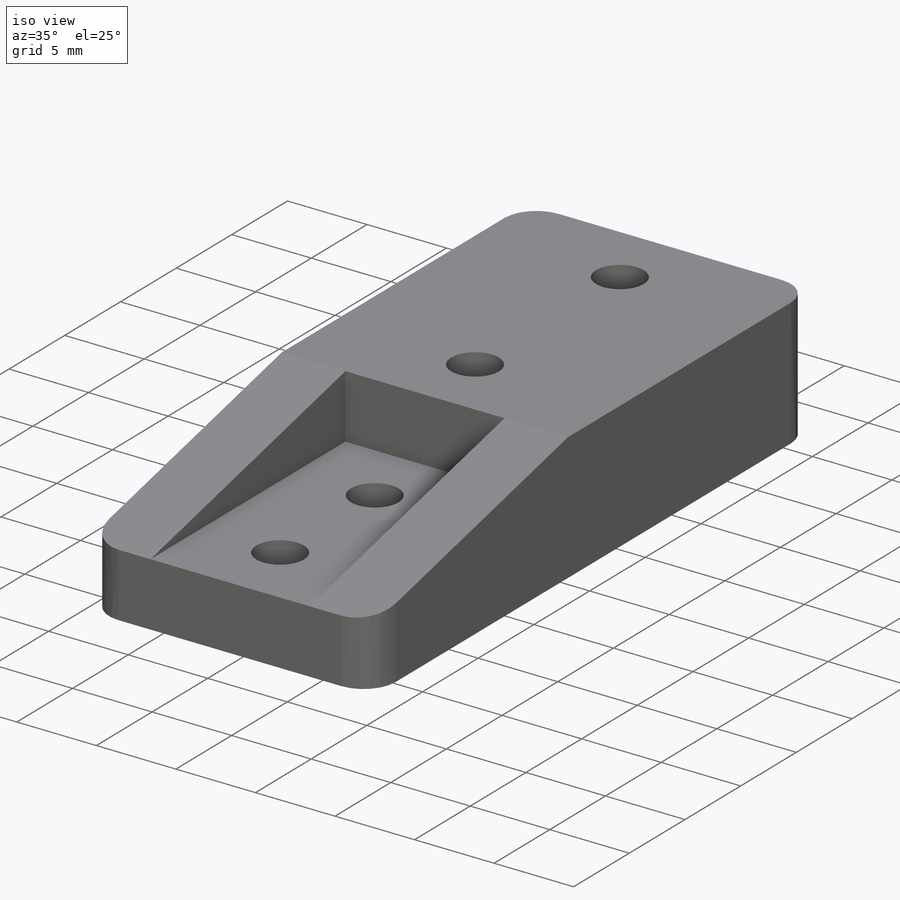
[diagram: iso view]
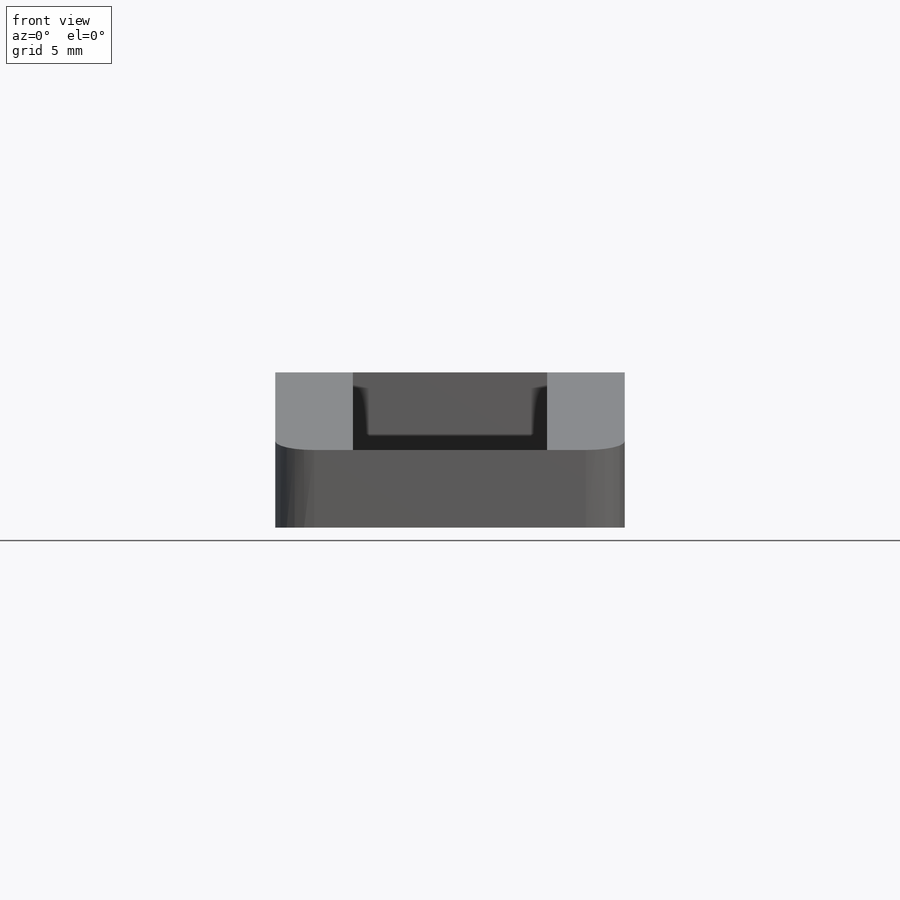
[diagram: front view]
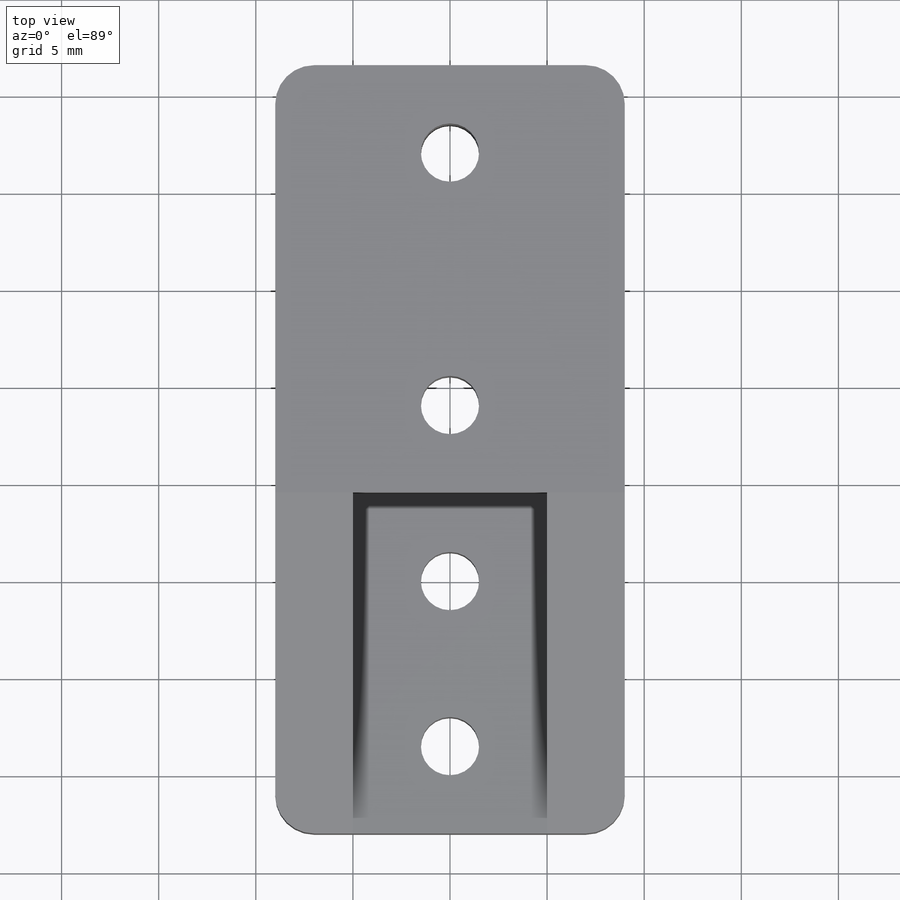
[diagram: top view]
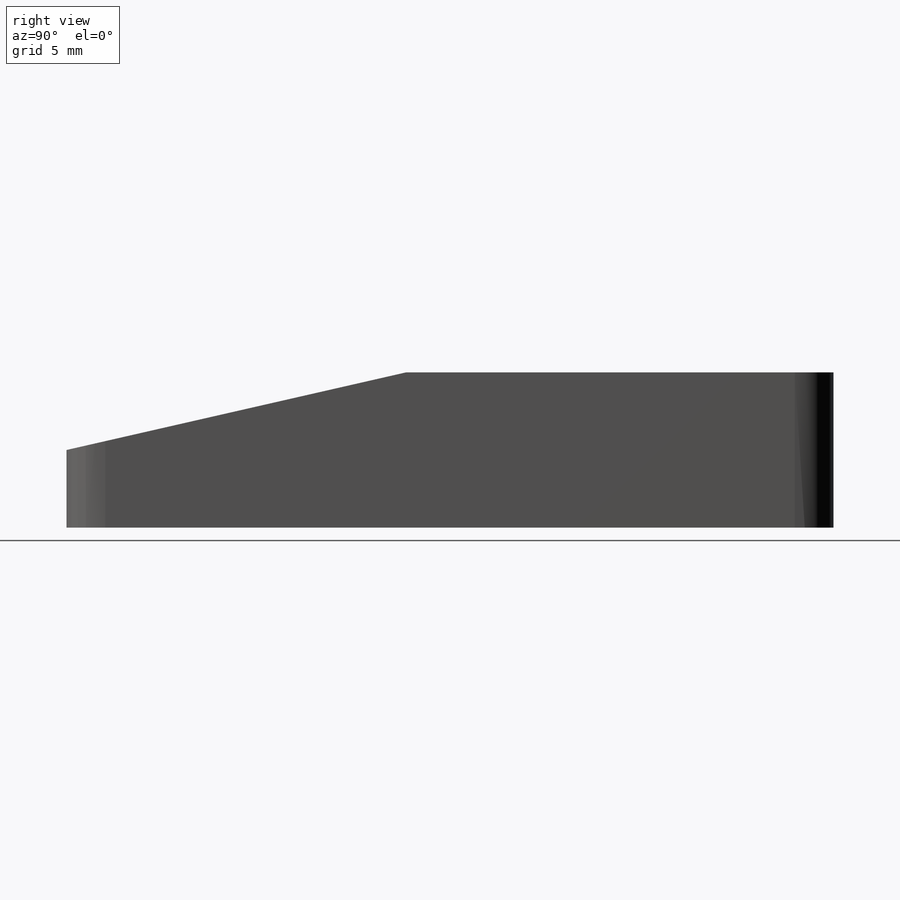
[diagram: right view]
SOLIDWORKS PART (.sldprt)
format: sldprt  version: not decoded by parser v0  size: 185,344 bytes
history: native  units: mm
features: sketch x6, cut_extrude x5, fillet x2, material x1, extrude x1 (+16 scaffold rows collapsed)
feature tree (31):
  scaffold x16  (default folders/planes/origin — collapsed)
  material  "Material <not specified>"
  sketch  "Sketch1"
  extrude  "Extrude1"  Depth=8mm
  sketch  "Sketch4"  dims[D1=10.0mm]
  cut_extrude  "Extrude3"  Depth=4mm
  sketch  "Sketch7"
  cut_extrude  "Extrude4"  [1 undecoded]
  cut_extrude  "Extrude5"  [1 undecoded]
  sketch  "Sketch4<4>"
  fillet  "Fillet1"  Radius=2mm
  sketch  "Sketch8"  dims[D1=4.5mm]
  cut_extrude  "Extrude6"  [1 undecoded]
  sketch  "Sketch9"  dims[D1=~3.595389mm]
  cut_extrude  "Extrude7"  Depth=3mm
  fillet  "Fillet2"  Radius=2mm
decode coverage: 8 of 14 modeling features carry decoded parameters
note: ~ marks probable driven/reference dimensions
note: 3 parameter values undecoded
summary: no parameter record found for 3 features
note: suppression state not decoded; provenance and decode notes live in map.json
